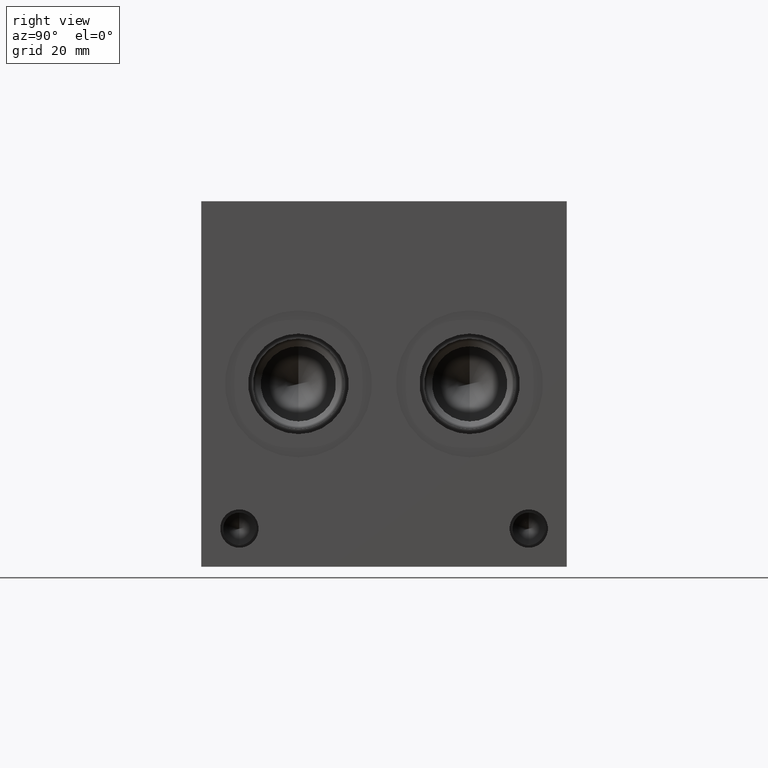
[diagram: clean part render]
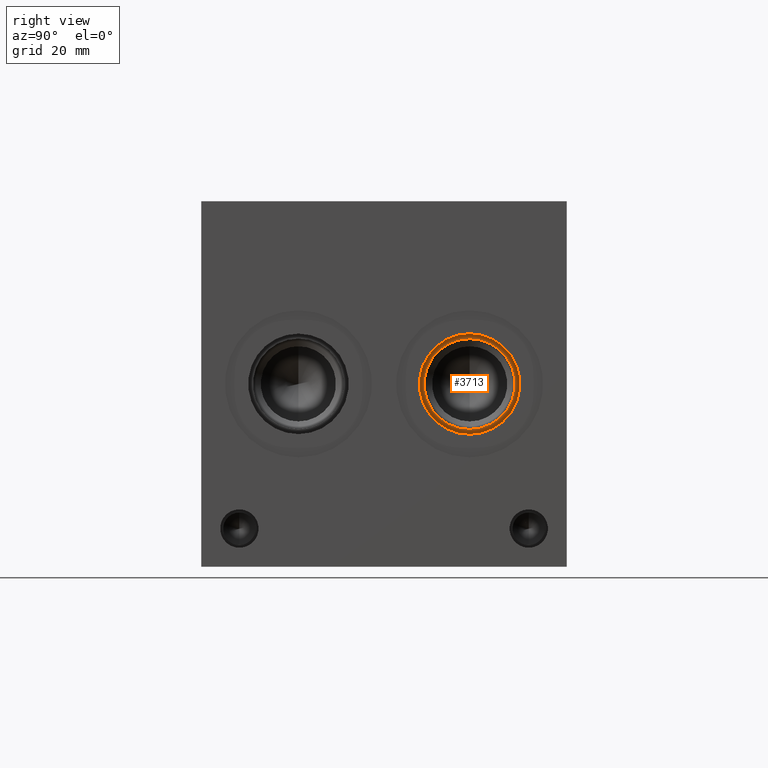
[diagram: same view with one face highlighted and labeled with its STEP entity id]
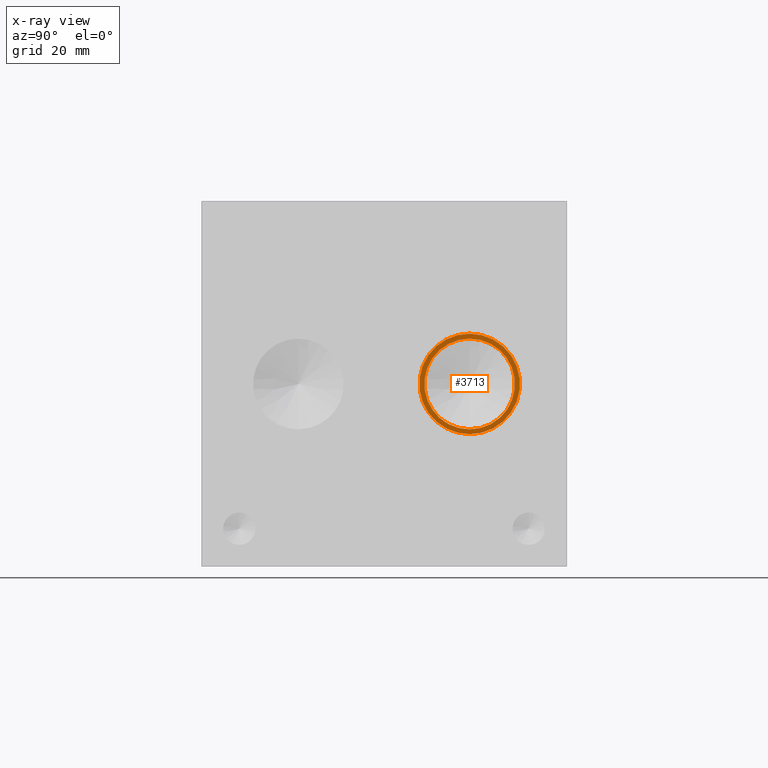
[diagram: x-ray of the same camera — body ghosted, the highlighted face saturated]
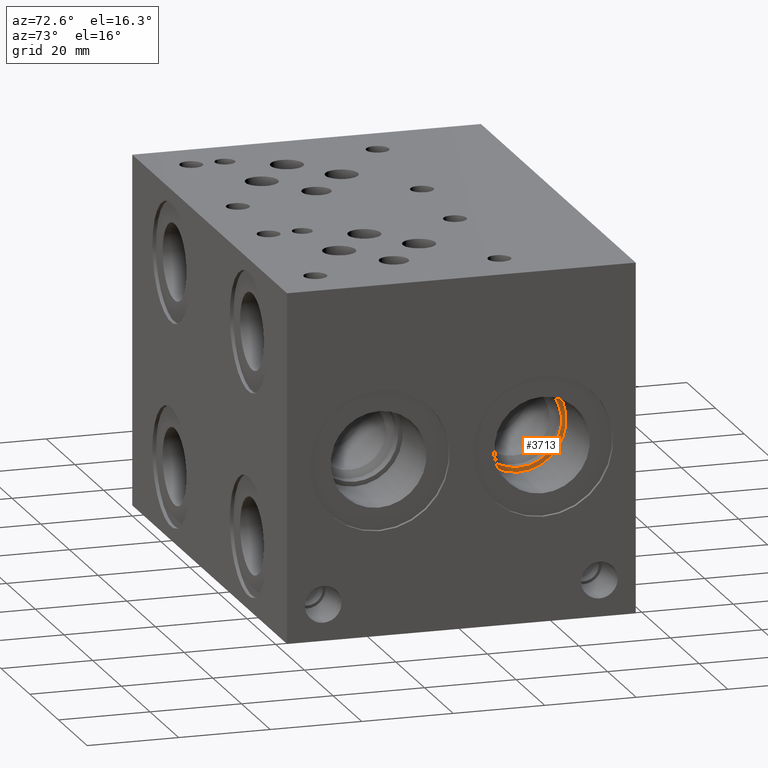
[diagram: same view with one face highlighted and labeled with its STEP entity id]
A machine part, right view. The second image highlights one B-rep face of the part: STEP entity #3713.
The next image is the same camera in x-ray: the body ghosted, the highlighted face saturated — about 0% of this face is hidden behind the body in this view.
A second angle (auxiliary view) of the same face is appended — the face is thin or edge-on in the first view.
In plain terms, the highlighted planar face has unit normal (-1, 0, 0).
Its self-contained STEP definition (entity closure, byte-faithful):
#3682=CARTESIAN_POINT('',(3.566000000000000,2.202999999999999,1.087500000000000));
#3683=VERTEX_POINT('',#3682);
#3684=CARTESIAN_POINT('',(3.566000000000000,2.202999999999999,1.500000000000000));
#3685=DIRECTION('',(-1.0,0.0,0.0));
#3686=DIRECTION('',(0.0,-1.0,0.0));
#3687=AXIS2_PLACEMENT_3D('',#3684,#3685,#3686);
#3688=CIRCLE('',#3687,0.412500000000000);
#3689=EDGE_CURVE('',#3683,#3683,#3688,.T.);
#3694=CARTESIAN_POINT('',(3.566000000000000,2.202999999999999,1.500000000000000));
#3695=DIRECTION('',(-1.0,0.0,0.0));
#3696=DIRECTION('',(0.0,0.0,1.0));
#3697=AXIS2_PLACEMENT_3D('',#3694,#3695,#3696);
#3698=PLANE('',#3697);
#3699=ORIENTED_EDGE('',*,*,#3689,.F.);
#3700=EDGE_LOOP('',(#3699));
#3701=FACE_OUTER_BOUND('',#3700,.T.);
#3702=CARTESIAN_POINT('',(3.566000000000000,2.202999999999999,1.127500000000000));
#3703=VERTEX_POINT('',#3702);
#3704=CARTESIAN_POINT('',(3.566000000000000,2.202999999999999,1.500000000000000));
#3705=DIRECTION('',(-1.0,0.0,0.0));
#3706=DIRECTION('',(0.0,-1.0,0.0));
#3707=AXIS2_PLACEMENT_3D('',#3704,#3705,#3706);
#3708=CIRCLE('',#3707,0.372500000000000);
#3709=EDGE_CURVE('',#3703,#3703,#3708,.T.);
#3710=ORIENTED_EDGE('',*,*,#3709,.T.);
#3711=EDGE_LOOP('',(#3710));
#3712=FACE_BOUND('',#3711,.T.);
#3713=ADVANCED_FACE('',(#3701,#3712),#3698,.F.);